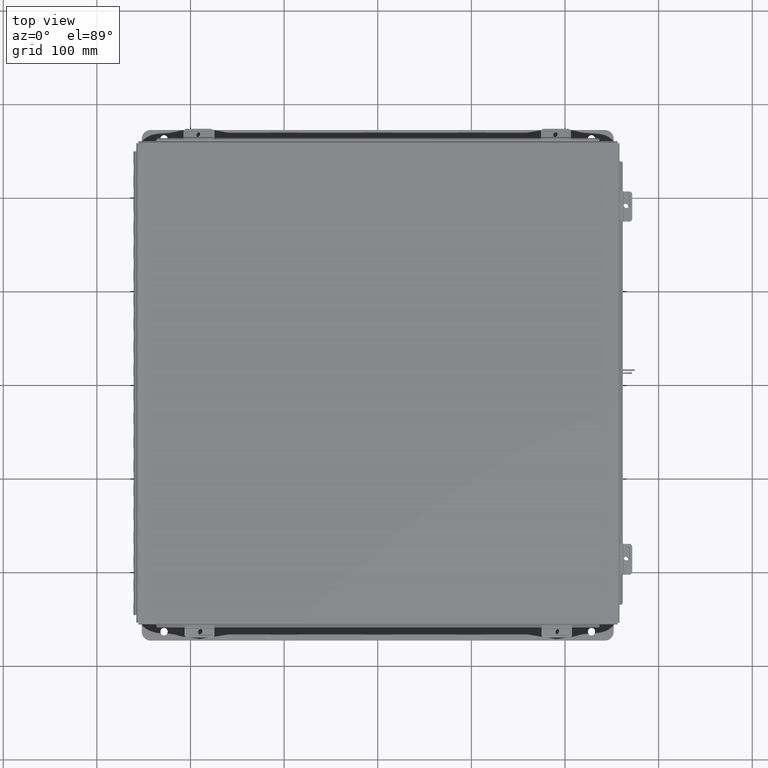
[diagram: clean part render]
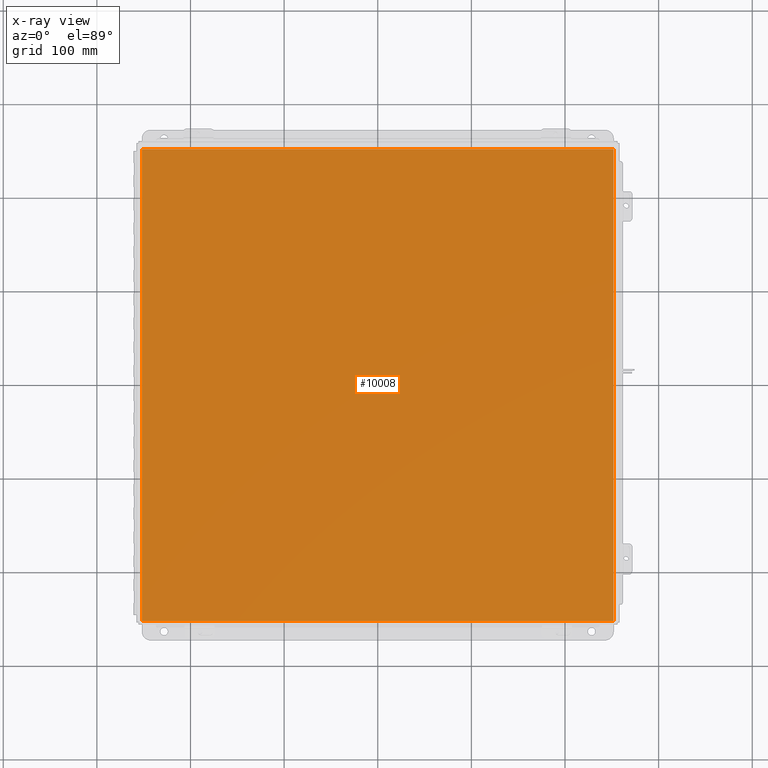
[diagram: x-ray — body ghosted, one internal face saturated and labeled with its STEP entity id]
A machine part, top view, then the same camera in x-ray: the body is ghosted and one INTERNAL B-rep face — a face not visible from any outside direction — is saturated and labeled: STEP entity #10008.
In plain terms, the highlighted planar face has unit normal (0, 0, -1).
Its self-contained STEP definition (entity closure, byte-faithful):
#383 = VERTEX_POINT ( 'NONE', #8505 ) ;
#1583 = VERTEX_POINT ( 'NONE', #12862 ) ;
#1715 = CARTESIAN_POINT ( 'NONE',  ( 9.912300000000001900, -9.925299999999998200, 4.268512490100411300E-017 ) ) ;
#2545 = ORIENTED_EDGE ( 'NONE', *, *, #21113, .T. ) ;
#2548 = VECTOR ( 'NONE', #20473, 39.37007874015748100 ) ;
#3303 = CARTESIAN_POINT ( 'NONE',  ( 9.912300000000001900, 9.925299999999998200, 4.268512490100411300E-017 ) ) ;
#3336 = VERTEX_POINT ( 'NONE', #3303 ) ;
#3415 = EDGE_LOOP ( 'NONE', ( #3803, #16042, #6277, #2545 ) ) ;
#3803 = ORIENTED_EDGE ( 'NONE', *, *, #17841, .F. ) ;
#4729 = VECTOR ( 'NONE', #21259, 39.37007874015748100 ) ;
#5357 = LINE ( 'NONE', #14869, #19348 ) ;
#6277 = ORIENTED_EDGE ( 'NONE', *, *, #22024, .F. ) ;
#6954 = LINE ( 'NONE', #18666, #2548 ) ;
#7207 = CARTESIAN_POINT ( 'NONE',  ( 9.912300000000001900, 9.925300000000001800, 4.268512490100411300E-017 ) ) ;
#8505 = CARTESIAN_POINT ( 'NONE',  ( -9.912299999999998300, -9.925299999999992900, 4.268512490100411300E-017 ) ) ;
#8669 = VECTOR ( 'NONE', #12420, 39.37007874015748100 ) ;
#8751 = CARTESIAN_POINT ( 'NONE',  ( -9.912299999999998300, -9.925299999999998200, 4.268512490100411300E-017 ) ) ;
#9192 = LINE ( 'NONE', #7207, #8669 ) ;
#10008 = ADVANCED_FACE ( 'NONE', ( #10465 ), #10089, .F. ) ;
#10089 = PLANE ( 'NONE',  #15459 ) ;
#10465 = FACE_OUTER_BOUND ( 'NONE', #3415, .T. ) ;
#12000 = DIRECTION ( 'NONE',  ( -1.000000000000000000, 0.0000000000000000000, -0.0000000000000000000 ) ) ;
#12420 = DIRECTION ( 'NONE',  ( -0.0000000000000000000, -1.000000000000000000, -0.0000000000000000000 ) ) ;
#12862 = CARTESIAN_POINT ( 'NONE',  ( -9.912299999999998300, 9.925300000000001800, 4.268512490100411300E-017 ) ) ;
#13637 = DIRECTION ( 'NONE',  ( 0.0000000000000000000, 0.0000000000000000000, -1.000000000000000000 ) ) ;
#13699 = EDGE_CURVE ( 'NONE', #3336, #1583, #5357, .T. ) ;
#13703 = CARTESIAN_POINT ( 'NONE',  ( 0.0000000000000000000, 0.0000000000000000000, 0.0000000000000000000 ) ) ;
#13969 = LINE ( 'NONE', #8751, #4729 ) ;
#14869 = CARTESIAN_POINT ( 'NONE',  ( -9.999999999999998200, 9.925300000000001800, 0.0000000000000000000 ) ) ;
#15459 = AXIS2_PLACEMENT_3D ( 'NONE', #13703, #13637, #12000 ) ;
#16042 = ORIENTED_EDGE ( 'NONE', *, *, #13699, .T. ) ;
#16595 = VERTEX_POINT ( 'NONE', #1715 ) ;
#16669 = DIRECTION ( 'NONE',  ( -1.000000000000000000, -0.0000000000000000000, -0.0000000000000000000 ) ) ;
#17841 = EDGE_CURVE ( 'NONE', #3336, #16595, #9192, .T. ) ;
#18666 = CARTESIAN_POINT ( 'NONE',  ( -9.999999999999998200, -9.925299999999998200, 0.0000000000000000000 ) ) ;
#19348 = VECTOR ( 'NONE', #16669, 39.37007874015748100 ) ;
#20473 = DIRECTION ( 'NONE',  ( 1.000000000000000000, 0.0000000000000000000, 0.0000000000000000000 ) ) ;
#21113 = EDGE_CURVE ( 'NONE', #383, #16595, #6954, .T. ) ;
#21259 = DIRECTION ( 'NONE',  ( -0.0000000000000000000, 1.000000000000000000, -0.0000000000000000000 ) ) ;
#22024 = EDGE_CURVE ( 'NONE', #383, #1583, #13969, .T. ) ;